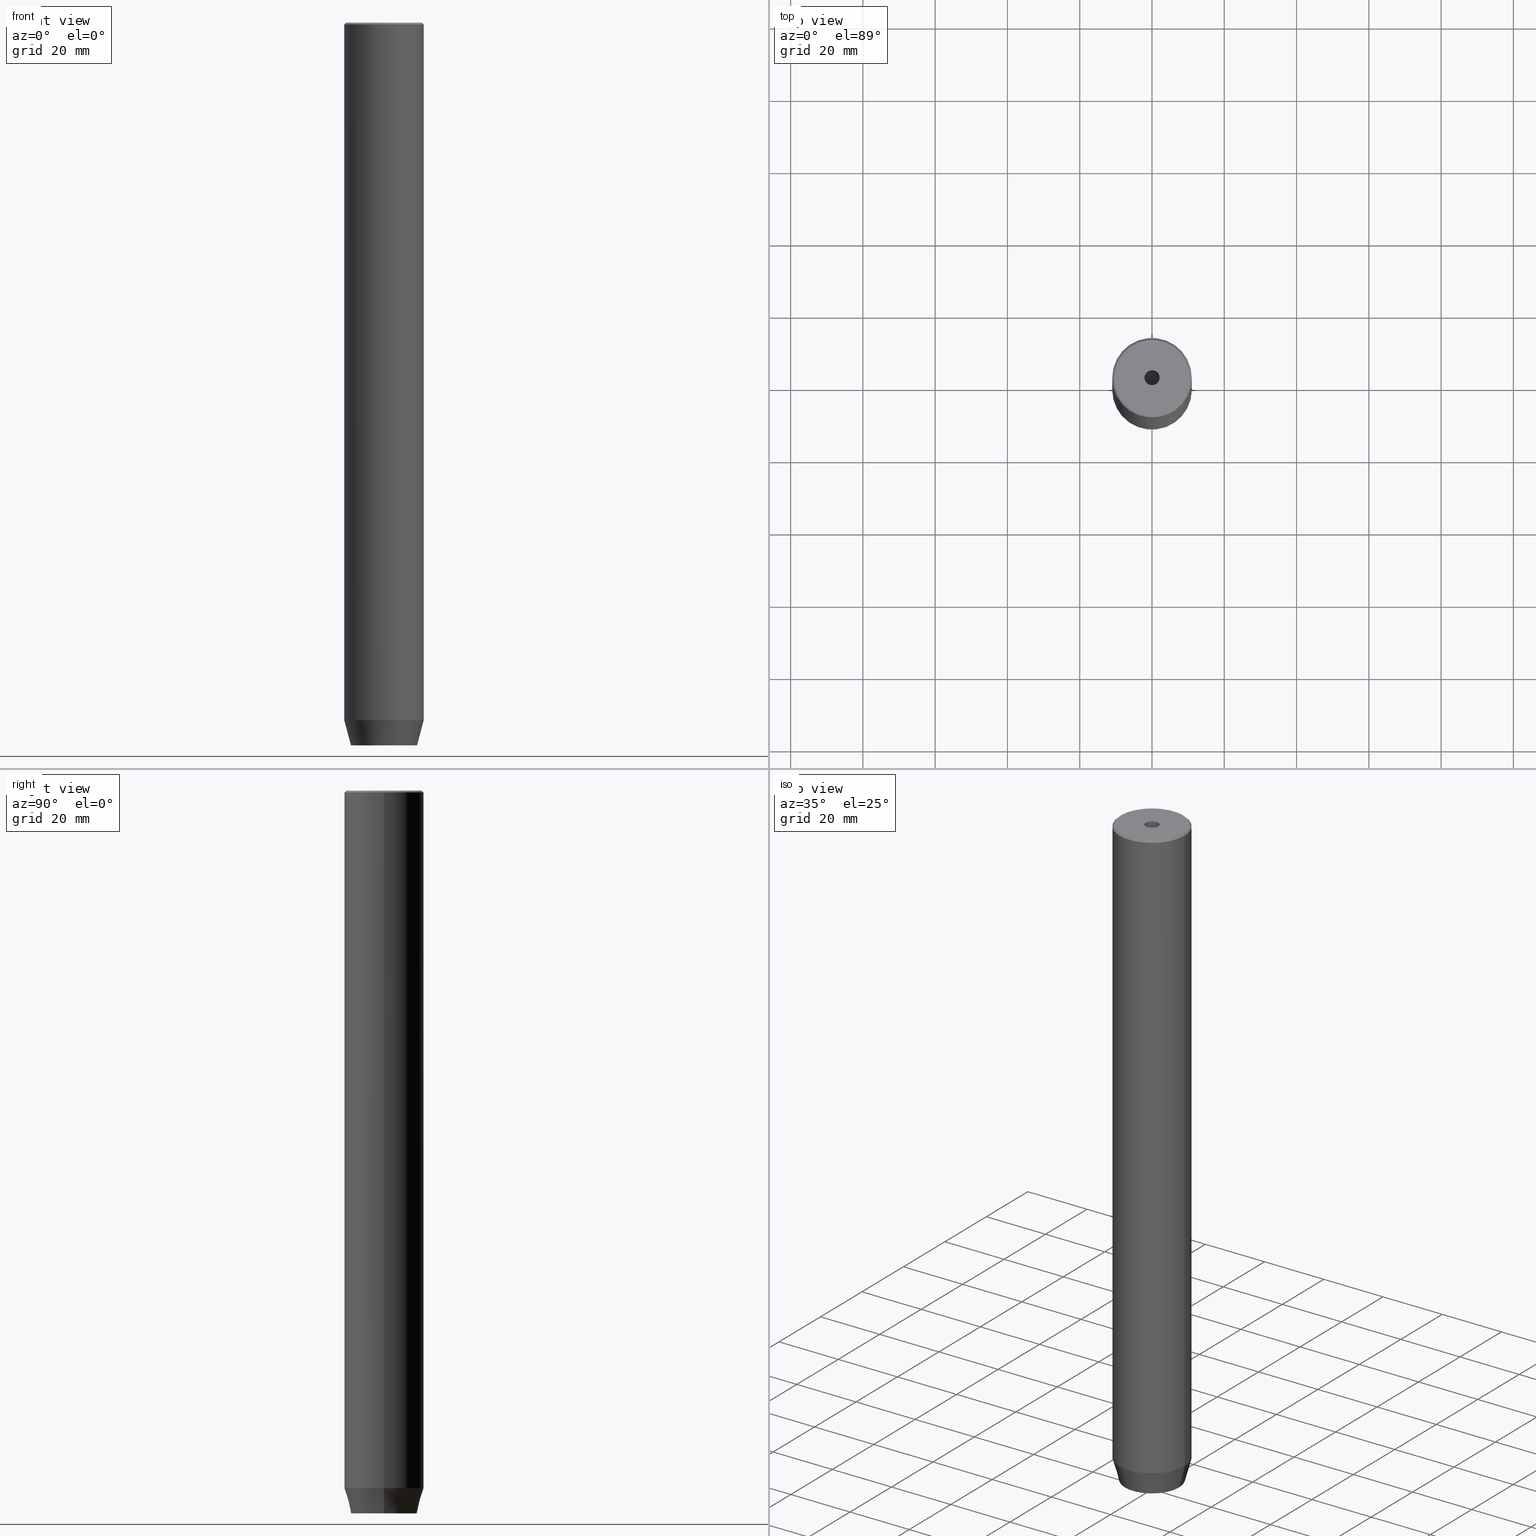
[diagram: canonical four-view strip — front | top / right | iso, engineering-drawing reading convention]
A machine part, canonical four-view strip (front | top / right | iso — engineering-drawing reading convention). The complete STEP part file that produces these views, byte-faithful:
ISO-10303-21;
HEADER;
FILE_DESCRIPTION (( 'STEP AP203' ),
    '1' );
FILE_NAME ('6869.STEP',
    '2024-01-02T17:17:59',
    ( '' ),
    ( '' ),
    'SwSTEP 2.0',
    'SolidWorks 2019',
    '' );
FILE_SCHEMA (( 'CONFIG_CONTROL_DESIGN' ));
ENDSEC;

DATA;
#1 = DIRECTION ( 'NONE',  ( 1.000000000000000000, 0.000000000000000000, 0.000000000000000000 ) ) ;
#2 = EDGE_CURVE ( 'NONE', #54, #73, #234, .T. ) ;
#3 = CARTESIAN_POINT ( 'NONE',  ( -4.000000000000000000, -2.309401076758503368, -200.0000000000000000 ) ) ;
#4 = DIRECTION ( 'NONE',  ( -0.000000000000000000, -0.000000000000000000, -1.000000000000000000 ) ) ;
#5 = VERTEX_POINT ( 'NONE', #103 ) ;
#6 = APPROVAL ( #333, 'NEUR�EN�' ) ;
#7 = DIRECTION ( 'NONE',  ( 0.8571673007021108903, 0.000000000000000000, 0.5150380749100565980 ) ) ;
#8 = VERTEX_POINT ( 'NONE', #510 ) ;
#9 = CARTESIAN_POINT ( 'NONE',  ( 0.000000000000000000, 0.000000000000000000, -25.00000000000000000 ) ) ;
#10 = ORIENTED_EDGE ( 'NONE', *, *, #485, .T. ) ;
#11 = EDGE_LOOP ( 'NONE', ( #532, #406, #426, #525 ) ) ;
#12 = MECHANICAL_CONTEXT ( 'NONE', #52, 'mechanical' ) ;
#13 = VECTOR ( 'NONE', #44, 1000.000000000000000 ) ;
#14 = VECTOR ( 'NONE', #287, 1000.000000000000000 ) ;
#15 = ORIENTED_EDGE ( 'NONE', *, *, #568, .T. ) ;
#16 = DIRECTION ( 'NONE',  ( 0.000000000000000000, 0.000000000000000000, 1.000000000000000000 ) ) ;
#17 = PERSON_AND_ORGANIZATION ( #207, #68 ) ;
#18 = CC_DESIGN_DATE_AND_TIME_ASSIGNMENT ( #241, #170, ( #366 ) ) ;
#19 = DIRECTION ( 'NONE',  ( 0.000000000000000000, -1.000000000000000000, 0.000000000000000000 ) ) ;
#20 = LINE ( 'NONE', #474, #14 ) ;
#21 = EDGE_LOOP ( 'NONE', ( #371, #124 ) ) ;
#22 = ADVANCED_FACE ( 'NONE', ( #286 ), #100, .F. ) ;
#23 = CARTESIAN_POINT ( 'NONE',  ( 2.000000000000000444, 3.464101615137754386, -200.0000000000000000 ) ) ;
#24 = AXIS2_PLACEMENT_3D ( 'NONE', #9, #455, #511 ) ;
#25 = EDGE_CURVE ( 'NONE', #82, #560, #97, .T. ) ;
#26 = CLOSED_SHELL ( 'NONE', ( #408, #524, #545, #113, #273, #284, #189, #242, #431, #518, #489, #232, #22, #74, #320, #280, #88, #558, #211 ) ) ;
#27 = LOCAL_TIME ( 18, 17, 59.00000000000000000, #128 ) ;
#28 = DATE_AND_TIME ( #395, #364 ) ;
#29 = VERTEX_POINT ( 'NONE', #424 ) ;
#30 = CARTESIAN_POINT ( 'NONE',  ( 0.000000000000000000, 0.000000000000000000, 0.000000000000000000 ) ) ;
#31 = CARTESIAN_POINT ( 'NONE',  ( 4.000000000000000000, 0.000000000000000000, -197.2000000000000171 ) ) ;
#32 = COORDINATED_UNIVERSAL_TIME_OFFSET ( 1, 0, .AHEAD. ) ;
#33 = EDGE_LOOP ( 'NONE', ( #120, #191 ) ) ;
#34 = CIRCLE ( 'NONE', #161, 11.00000000000000000 ) ;
#35 = LINE ( 'NONE', #49, #248 ) ;
#36 = LINE ( 'NONE', #486, #567 ) ;
#37 = EDGE_LOOP ( 'NONE', ( #318, #544, #581, #464 ) ) ;
#38 = LINE ( 'NONE', #167, #434 ) ;
#39 = CARTESIAN_POINT ( 'NONE',  ( 4.000000000000000000, -2.309401076758502480, -197.2000000000000171 ) ) ;
#40 = DIRECTION ( 'NONE',  ( -0.000000000000000000, -0.000000000000000000, 1.000000000000000000 ) ) ;
#41 = ORIENTED_EDGE ( 'NONE', *, *, #563, .T. ) ;
#42 = VERTEX_POINT ( 'NONE', #447 ) ;
#43 = EDGE_CURVE ( 'NONE', #484, #8, #38, .T. ) ;
#44 = DIRECTION ( 'NONE',  ( 0.000000000000000000, 1.000000000000000000, 0.000000000000000000 ) ) ;
#45 = DIRECTION ( 'NONE',  ( -0.000000000000000000, -0.000000000000000000, 1.000000000000000000 ) ) ;
#46 = CARTESIAN_POINT ( 'NONE',  ( 0.000000000000000000, 0.000000000000000000, -1.990051048614449116E-16 ) ) ;
#47 = ORIENTED_EDGE ( 'NONE', *, *, #482, .F. ) ;
#48 = AXIS2_PLACEMENT_3D ( 'NONE', #31, #223, #270 ) ;
#49 = CARTESIAN_POINT ( 'NONE',  ( 0.000000000000000000, 4.618802153517006737, -197.2000000000000171 ) ) ;
#50 = DIRECTION ( 'NONE',  ( 0.000000000000000000, 0.000000000000000000, -1.000000000000000000 ) ) ;
#51 = ORIENTED_EDGE ( 'NONE', *, *, #439, .F. ) ;
#52 = APPLICATION_CONTEXT ( 'configuration controlled 3d designs of mechanical parts and assemblies' ) ;
#53 = FACE_OUTER_BOUND ( 'NONE', #226, .T. ) ;
#54 = VERTEX_POINT ( 'NONE', #349 ) ;
#55 = EDGE_LOOP ( 'NONE', ( #277, #351, #230, #326 ) ) ;
#56 = LINE ( 'NONE', #276, #300 ) ;
#57 = DIRECTION ( 'NONE',  ( -0.000000000000000000, -0.000000000000000000, 1.000000000000000000 ) ) ;
#58 = CARTESIAN_POINT ( 'NONE',  ( 0.000000000000000000, 0.000000000000000000, -0.4999999999999726885 ) ) ;
#59 = EDGE_LOOP ( 'NONE', ( #319, #217, #502, #355, #374, #468 ) ) ;
#60 = PERSON_AND_ORGANIZATION ( #207, #68 ) ;
#61 = CIRCLE ( 'NONE', #387, 9.124355652982133691 ) ;
#62 = CARTESIAN_POINT ( 'NONE',  ( -2.000000000000000888, -3.464101615137754386, -200.0000000000000000 ) ) ;
#63 = FACE_OUTER_BOUND ( 'NONE', #403, .T. ) ;
#64 = EDGE_CURVE ( 'NONE', #82, #324, #219, .T. ) ;
#65 = FACE_OUTER_BOUND ( 'NONE', #496, .T. ) ;
#66 = EDGE_CURVE ( 'NONE', #536, #139, #365, .T. ) ;
#67 = CONICAL_SURFACE ( 'NONE', #252, 10.50000000000000888, 0.7853981633974657095 ) ;
#68 = ORGANIZATION ( 'NEUR�EN�', 'NEUR�EN�', '' ) ;
#69 = EDGE_CURVE ( 'NONE', #484, #543, #35, .T. ) ;
#70 = APPROVAL ( #123, 'NEUR�EN�' ) ;
#71 = AXIS2_PLACEMENT_3D ( 'NONE', #382, #561, #114 ) ;
#72 = VECTOR ( 'NONE', #495, 1000.000000000000114 ) ;
#73 = VERTEX_POINT ( 'NONE', #404 ) ;
#74 = ADVANCED_FACE ( 'NONE', ( #539 ), #353, .F. ) ;
#75 = FACE_BOUND ( 'NONE', #21, .T. ) ;
#76 = DIRECTION ( 'NONE',  ( 1.000000000000000000, 0.000000000000000000, 0.000000000000000000 ) ) ;
#77 = PERSON_AND_ORGANIZATION ( #207, #68 ) ;
#78 = ORIENTED_EDGE ( 'NONE', *, *, #171, .F. ) ;
#79 = DIRECTION ( 'NONE',  ( 1.000000000000000000, 0.000000000000000000, 0.000000000000000000 ) ) ;
#80 = DIRECTION ( 'NONE',  ( -0.000000000000000000, -0.000000000000000000, 1.000000000000000000 ) ) ;
#81 = LINE ( 'NONE', #131, #72 ) ;
#82 = VERTEX_POINT ( 'NONE', #183 ) ;
#83 = VECTOR ( 'NONE', #292, 1000.000000000000000 ) ;
#84 = PERSON_AND_ORGANIZATION_ROLE ( 'design_supplier' ) ;
#85 = FACE_OUTER_BOUND ( 'NONE', #313, .T. ) ;
#86 = DIRECTION ( 'NONE',  ( 1.000000000000000000, 0.000000000000000000, 0.000000000000000000 ) ) ;
#87 = ORIENTED_EDGE ( 'NONE', *, *, #122, .T. ) ;
#88 = ADVANCED_FACE ( 'NONE', ( #309 ), #177, .T. ) ;
#89 = CARTESIAN_POINT ( 'NONE',  ( -4.000000000000000000, 2.309401076758503368, -200.0000000000000000 ) ) ;
#90 = DIRECTION ( 'NONE',  ( -0.000000000000000000, -0.000000000000000000, 1.000000000000000000 ) ) ;
#91 = DIRECTION ( 'NONE',  ( 0.000000000000000000, 0.000000000000000000, -1.000000000000000000 ) ) ;
#92 = EDGE_LOOP ( 'NONE', ( #180, #174, #181, #257 ) ) ;
#93 = DIRECTION ( 'NONE',  ( 0.5000000000000003331, -0.8660254037844385966, 0.000000000000000000 ) ) ;
#94 = DIRECTION ( 'NONE',  ( -0.000000000000000000, -0.000000000000000000, -1.000000000000000000 ) ) ;
#95 = LINE ( 'NONE', #463, #164 ) ;
#96 = VERTEX_POINT ( 'NONE', #141 ) ;
#97 = CIRCLE ( 'NONE', #311, 10.50000000000000888 ) ;
#98 = APPROVAL_PERSON_ORGANIZATION ( #582, #136, #194 ) ;
#99 = LINE ( 'NONE', #281, #435 ) ;
#100 = PLANE ( 'NONE',  #118 ) ;
#101 =( LENGTH_UNIT ( ) NAMED_UNIT ( * ) SI_UNIT ( .MILLI., .METRE. ) );
#102 = FACE_OUTER_BOUND ( 'NONE', #467, .T. ) ;
#103 = CARTESIAN_POINT ( 'NONE',  ( -2.099999999999998757, 2.571758278209440478E-16, -1.990051048614449116E-16 ) ) ;
#104 = CARTESIAN_POINT ( 'NONE',  ( -11.00000000000000000, 1.347111479062088405E-15, 0.000000000000000000 ) ) ;
#105 = EDGE_LOOP ( 'NONE', ( #236, #156, #444, #307 ) ) ;
#106 = PERSON_AND_ORGANIZATION ( #207, #68 ) ;
#107 = CARTESIAN_POINT ( 'NONE',  ( 9.124355652982133691, 0.000000000000000000, -200.0000000000000000 ) ) ;
#108 = VECTOR ( 'NONE', #259, 1000.000000000000000 ) ;
#109 = CONICAL_SURFACE ( 'NONE', #209, 11.00000000000000000, 0.2617993877991500740 ) ;
#110 = AXIS2_PLACEMENT_3D ( 'NONE', #46, #417, #185 ) ;
#111 = CARTESIAN_POINT ( 'NONE',  ( -9.124355652982133691, 1.232261386766375507E-15, -200.0000000000000000 ) ) ;
#112 = ORIENTED_EDGE ( 'NONE', *, *, #515, .F. ) ;
#113 = ADVANCED_FACE ( 'NONE', ( #85 ), #480, .T. ) ;
#114 = DIRECTION ( 'NONE',  ( -1.000000000000000000, 0.000000000000000000, -0.000000000000000000 ) ) ;
#115 = CC_DESIGN_PERSON_AND_ORGANIZATION_ASSIGNMENT ( #60, #578, ( #366 ) ) ;
#116 = VECTOR ( 'NONE', #321, 1000.000000000000000 ) ;
#117 = VECTOR ( 'NONE', #256, 999.9999999999998863 ) ;
#118 = AXIS2_PLACEMENT_3D ( 'NONE', #188, #551, #282 ) ;
#119 = VECTOR ( 'NONE', #260, 1000.000000000000000 ) ;
#120 = ORIENTED_EDGE ( 'NONE', *, *, #25, .T. ) ;
#121 = CC_DESIGN_APPROVAL ( #70, ( #379 ) ) ;
#122 = EDGE_CURVE ( 'NONE', #8, #54, #399, .T. ) ;
#123 = APPROVAL_STATUS ( 'not_yet_approved' ) ;
#124 = ORIENTED_EDGE ( 'NONE', *, *, #384, .F. ) ;
#125 = CARTESIAN_POINT ( 'NONE',  ( 11.00000000000000000, 0.000000000000000000, -193.0000000000000000 ) ) ;
#126 = DIRECTION ( 'NONE',  ( 1.000000000000000000, 0.000000000000000000, 0.000000000000000000 ) ) ;
#127 = VERTEX_POINT ( 'NONE', #498 ) ;
#128 = COORDINATED_UNIVERSAL_TIME_OFFSET ( 1, 0, .AHEAD. ) ;
#129 = DIRECTION ( 'NONE',  ( 0.8660254037844384856, 0.5000000000000002220, 0.000000000000000000 ) ) ;
#130 = EDGE_CURVE ( 'NONE', #536, #484, #583, .T. ) ;
#131 = CARTESIAN_POINT ( 'NONE',  ( -2.000000000000000888, -3.464101615137754386, -197.2000000000000171 ) ) ;
#132 = ORIENTED_EDGE ( 'NONE', *, *, #384, .T. ) ;
#133 = AXIS2_PLACEMENT_3D ( 'NONE', #168, #401, #76 ) ;
#134 = DATE_TIME_ROLE ( 'classification_date' ) ;
#135 = DIRECTION ( 'NONE',  ( 0.000000000000000000, 0.000000000000000000, -1.000000000000000000 ) ) ;
#136 = APPROVAL ( #258, 'NEUR�EN�' ) ;
#137 = CARTESIAN_POINT ( 'NONE',  ( 0.000000000000000000, 0.000000000000000000, -193.0000000000000000 ) ) ;
#138 = CARTESIAN_POINT ( 'NONE',  ( 0.000000000000000000, 0.000000000000000000, -25.00000000000000000 ) ) ;
#139 = VERTEX_POINT ( 'NONE', #89 ) ;
#140 = ORIENTED_EDGE ( 'NONE', *, *, #451, .T. ) ;
#141 = CARTESIAN_POINT ( 'NONE',  ( 11.00000000000000000, 0.000000000000000000, -0.4999999999999726885 ) ) ;
#142 = CARTESIAN_POINT ( 'NONE',  ( 0.000000000000000000, 0.000000000000000000, -193.0000000000000000 ) ) ;
#143 = ORIENTED_EDGE ( 'NONE', *, *, #162, .T. ) ;
#144 = DIRECTION ( 'NONE',  ( -0.5000000000000000000, 0.8660254037844387076, 0.000000000000000000 ) ) ;
#145 = ORIENTED_EDGE ( 'NONE', *, *, #69, .T. ) ;
#146 = CONICAL_SURFACE ( 'NONE', #553, 2.099999999999995648, 1.029744258676651647 ) ;
#147 =( GEOMETRIC_REPRESENTATION_CONTEXT ( 3 ) GLOBAL_UNCERTAINTY_ASSIGNED_CONTEXT ( ( #208 ) ) GLOBAL_UNIT_ASSIGNED_CONTEXT ( ( #101, #445, #352 ) ) REPRESENTATION_CONTEXT ( 'NONE', 'WORKASPACE' ) );
#148 = DIRECTION ( 'NONE',  ( 1.000000000000000000, 0.000000000000000000, 0.000000000000000000 ) ) ;
#149 = EDGE_LOOP ( 'NONE', ( #478, #412, #263, #225 ) ) ;
#150 = CYLINDRICAL_SURFACE ( 'NONE', #508, 11.00000000000000000 ) ;
#151 = CALENDAR_DATE ( 2024, 2, 1 ) ;
#152 = CYLINDRICAL_SURFACE ( 'NONE', #262, 11.00000000000000000 ) ;
#153 = ORIENTED_EDGE ( 'NONE', *, *, #122, .F. ) ;
#154 = EDGE_CURVE ( 'NONE', #303, #139, #457, .T. ) ;
#155 = LINE ( 'NONE', #367, #119 ) ;
#156 = ORIENTED_EDGE ( 'NONE', *, *, #66, .F. ) ;
#157 = AXIS2_PLACEMENT_3D ( 'NONE', #410, #45, #302 ) ;
#158 = PRODUCT_DEFINITION_FORMATION_WITH_SPECIFIED_SOURCE ( 'LIBOVOLN�', '', #446, .NOT_KNOWN. ) ;
#159 = CYLINDRICAL_SURFACE ( 'NONE', #462, 2.099999999999996980 ) ;
#160 = FACE_OUTER_BOUND ( 'NONE', #363, .T. ) ;
#161 = AXIS2_PLACEMENT_3D ( 'NONE', #458, #405, #126 ) ;
#162 = EDGE_CURVE ( 'NONE', #268, #96, #227, .T. ) ;
#163 = CC_DESIGN_PERSON_AND_ORGANIZATION_ASSIGNMENT ( #17, #407, ( #446 ) ) ;
#164 = VECTOR ( 'NONE', #550, 1000.000000000000000 ) ;
#165 = ORIENTED_EDGE ( 'NONE', *, *, #507, .T. ) ;
#166 = APPROVAL_PERSON_ORGANIZATION ( #106, #6, #314 ) ;
#167 = CARTESIAN_POINT ( 'NONE',  ( 2.000000000000000444, 3.464101615137754386, -197.2000000000000171 ) ) ;
#168 = CARTESIAN_POINT ( 'NONE',  ( 0.000000000000000000, 0.000000000000000000, -25.00000000000000000 ) ) ;
#169 = ORIENTED_EDGE ( 'NONE', *, *, #43, .F. ) ;
#170 = DATE_TIME_ROLE ( 'creation_date' ) ;
#171 = EDGE_CURVE ( 'NONE', #272, #197, #437, .T. ) ;
#172 = DIRECTION ( 'NONE',  ( -0.000000000000000000, -0.000000000000000000, -1.000000000000000000 ) ) ;
#173 = DIRECTION ( 'NONE',  ( 1.000000000000000000, 0.000000000000000000, 0.000000000000000000 ) ) ;
#174 = ORIENTED_EDGE ( 'NONE', *, *, #25, .F. ) ;
#175 = PERSON_AND_ORGANIZATION_ROLE ( 'classification_officer' ) ;
#176 = EDGE_CURVE ( 'NONE', #197, #268, #503, .T. ) ;
#177 = PLANE ( 'NONE',  #327 ) ;
#178 = LINE ( 'NONE', #584, #526 ) ;
#179 = LINE ( 'NONE', #360, #329 ) ;
#180 = ORIENTED_EDGE ( 'NONE', *, *, #485, .F. ) ;
#181 = ORIENTED_EDGE ( 'NONE', *, *, #64, .T. ) ;
#182 = CIRCLE ( 'NONE', #133, 2.099999999999995648 ) ;
#183 = CARTESIAN_POINT ( 'NONE',  ( -10.50000000000000888, 0.000000000000000000, 0.000000000000000000 ) ) ;
#184 = LINE ( 'NONE', #350, #521 ) ;
#185 = DIRECTION ( 'NONE',  ( 1.000000000000000000, 0.000000000000000000, 0.000000000000000000 ) ) ;
#186 = ORIENTED_EDGE ( 'NONE', *, *, #64, .F. ) ;
#187 = DIRECTION ( 'NONE',  ( 0.7071067811865597852, 8.659560562355083235E-17, -0.7071067811865352493 ) ) ;
#188 = CARTESIAN_POINT ( 'NONE',  ( -2.000000000000000888, -3.464101615137754386, -197.2000000000000171 ) ) ;
#189 = ADVANCED_FACE ( 'NONE', ( #75, #255 ), #442, .T. ) ;
#190 = DIRECTION ( 'NONE',  ( -1.000000000000000000, 0.000000000000000000, 0.000000000000000000 ) ) ;
#191 = ORIENTED_EDGE ( 'NONE', *, *, #465, .T. ) ;
#192 = CARTESIAN_POINT ( 'NONE',  ( 0.000000000000000000, 0.000000000000000000, 0.000000000000000000 ) ) ;
#193 = ORIENTED_EDGE ( 'NONE', *, *, #465, .F. ) ;
#194 = APPROVAL_ROLE ( '' ) ;
#195 = CIRCLE ( 'NONE', #523, 2.099999999999998757 ) ;
#196 = FACE_OUTER_BOUND ( 'NONE', #11, .T. ) ;
#197 = VERTEX_POINT ( 'NONE', #107 ) ;
#198 = APPROVAL_DATE_TIME ( #304, #136 ) ;
#199 = EDGE_CURVE ( 'NONE', #288, #303, #332, .T. ) ;
#200 = DIRECTION ( 'NONE',  ( 1.000000000000000000, 0.000000000000000000, 0.000000000000000000 ) ) ;
#201 = ORIENTED_EDGE ( 'NONE', *, *, #2, .T. ) ;
#202 = DIRECTION ( 'NONE',  ( 1.000000000000000000, 0.000000000000000000, 0.000000000000000000 ) ) ;
#203 = EDGE_LOOP ( 'NONE', ( #586, #577, #527 ) ) ;
#204 = VECTOR ( 'NONE', #4, 1000.000000000000000 ) ;
#205 = MANIFOLD_SOLID_BREP ( 'Vrt�k z�vitn�ku pro M5 z�vit1', #26 ) ;
#206 = DIRECTION ( 'NONE',  ( -0.000000000000000000, -0.000000000000000000, 1.000000000000000000 ) ) ;
#207 = PERSON ( 'NEUR�EN�', 'NEUR�EN�', 'NEUR�EN�', ('NEUR�EN�'), ('NEUR�EN�'), ('NEUR�EN�') ) ;
#208 = UNCERTAINTY_MEASURE_WITH_UNIT (LENGTH_MEASURE( 1.000000000000000082E-05 ), #101, 'distance_accuracy_value', 'NONE');
#209 = AXIS2_PLACEMENT_3D ( 'NONE', #142, #415, #359 ) ;
#210 = EDGE_CURVE ( 'NONE', #127, #29, #20, .T. ) ;
#211 = ADVANCED_FACE ( 'NONE', ( #196 ), #159, .F. ) ;
#212 = ORIENTED_EDGE ( 'NONE', *, *, #2, .F. ) ;
#213 = PERSON_AND_ORGANIZATION ( #207, #68 ) ;
#214 = DIRECTION ( 'NONE',  ( 0.000000000000000000, -0.000000000000000000, 1.000000000000000000 ) ) ;
#215 = CARTESIAN_POINT ( 'NONE',  ( -6.432287649943602629E-15, 0.000000000000000000, -26.26180729995787999 ) ) ;
#216 = VECTOR ( 'NONE', #7, 1000.000000000000114 ) ;
#217 = ORIENTED_EDGE ( 'NONE', *, *, #154, .F. ) ;
#218 = CALENDAR_DATE ( 2024, 2, 1 ) ;
#219 = LINE ( 'NONE', #529, #538 ) ;
#220 = FACE_OUTER_BOUND ( 'NONE', #335, .T. ) ;
#221 = ORIENTED_EDGE ( 'NONE', *, *, #549, .T. ) ;
#222 = DIRECTION ( 'NONE',  ( -0.000000000000000000, -0.000000000000000000, 1.000000000000000000 ) ) ;
#223 = DIRECTION ( 'NONE',  ( 1.000000000000000000, 0.000000000000000000, -0.000000000000000000 ) ) ;
#224 = LINE ( 'NONE', #238, #204 ) ;
#225 = ORIENTED_EDGE ( 'NONE', *, *, #66, .T. ) ;
#226 = EDGE_LOOP ( 'NONE', ( #112, #501, #41 ) ) ;
#227 = LINE ( 'NONE', #575, #108 ) ;
#228 = DIRECTION ( 'NONE',  ( -0.8571673007021108903, 1.049727191138616847E-16, 0.5150380749100565980 ) ) ;
#229 = CARTESIAN_POINT ( 'NONE',  ( 0.000000000000000000, 0.000000000000000000, 0.000000000000000000 ) ) ;
#230 = ORIENTED_EDGE ( 'NONE', *, *, #441, .T. ) ;
#231 = AXIS2_PLACEMENT_3D ( 'NONE', #58, #240, #200 ) ;
#232 = ADVANCED_FACE ( 'NONE', ( #385 ), #246, .F. ) ;
#233 = PLANE ( 'NONE',  #573 ) ;
#234 = LINE ( 'NONE', #421, #386 ) ;
#235 = CARTESIAN_POINT ( 'NONE',  ( 2.168404344971008868E-16, 4.618802153517006737, -200.0000000000000000 ) ) ;
#236 = ORIENTED_EDGE ( 'NONE', *, *, #154, .T. ) ;
#237 = ORIENTED_EDGE ( 'NONE', *, *, #289, .T. ) ;
#238 = CARTESIAN_POINT ( 'NONE',  ( 4.336808689942017736E-16, -4.618802153517006737, -197.2000000000000171 ) ) ;
#239 = DIRECTION ( 'NONE',  ( 1.000000000000000000, 0.000000000000000000, 0.000000000000000000 ) ) ;
#240 = DIRECTION ( 'NONE',  ( 0.000000000000000000, 0.000000000000000000, -1.000000000000000000 ) ) ;
#241 = DATE_AND_TIME ( #218, #476 ) ;
#242 = ADVANCED_FACE ( 'NONE', ( #63 ), #152, .T. ) ;
#243 = AXIS2_PLACEMENT_3D ( 'NONE', #414, #80, #1 ) ;
#244 = PLANE ( 'NONE',  #71 ) ;
#245 = EDGE_LOOP ( 'NONE', ( #361, #571, #132, #301 ) ) ;
#246 = PLANE ( 'NONE',  #343 ) ;
#247 = DIRECTION ( 'NONE',  ( -0.000000000000000000, -0.000000000000000000, 1.000000000000000000 ) ) ;
#248 = VECTOR ( 'NONE', #172, 1000.000000000000000 ) ;
#249 = VECTOR ( 'NONE', #19, 1000.000000000000000 ) ;
#250 = LOCAL_TIME ( 18, 17, 59.00000000000000000, #497 ) ;
#251 = EDGE_CURVE ( 'NONE', #543, #254, #390, .T. ) ;
#252 = AXIS2_PLACEMENT_3D ( 'NONE', #229, #50, #368 ) ;
#253 = PRODUCT_RELATED_PRODUCT_CATEGORY ( 'detail', '', ( #446 ) ) ;
#254 = VERTEX_POINT ( 'NONE', #557 ) ;
#255 = FACE_OUTER_BOUND ( 'NONE', #33, .T. ) ;
#256 = DIRECTION ( 'NONE',  ( 0.8660254037844387076, 0.5000000000000001110, 0.000000000000000000 ) ) ;
#257 = ORIENTED_EDGE ( 'NONE', *, *, #295, .F. ) ;
#258 = APPROVAL_STATUS ( 'not_yet_approved' ) ;
#259 = DIRECTION ( 'NONE',  ( -0.000000000000000000, -0.000000000000000000, 1.000000000000000000 ) ) ;
#260 = DIRECTION ( 'NONE',  ( -0.000000000000000000, -0.000000000000000000, 1.000000000000000000 ) ) ;
#261 = VECTOR ( 'NONE', #315, 999.9999999999998863 ) ;
#262 = AXIS2_PLACEMENT_3D ( 'NONE', #334, #380, #562 ) ;
#263 = ORIENTED_EDGE ( 'NONE', *, *, #130, .F. ) ;
#264 = SECURITY_CLASSIFICATION_LEVEL ( 'unclassified' ) ;
#265 = CARTESIAN_POINT ( 'NONE',  ( 0.000000000000000000, 0.000000000000000000, -193.0000000000000000 ) ) ;
#266 = CARTESIAN_POINT ( 'NONE',  ( -2.000000000000000000, 3.464101615137754830, -200.0000000000000000 ) ) ;
#267 = DIRECTION ( 'NONE',  ( -0.8660254037844385966, -0.4999999999999999445, 0.000000000000000000 ) ) ;
#268 = VERTEX_POINT ( 'NONE', #564 ) ;
#269 = CARTESIAN_POINT ( 'NONE',  ( -4.000000000000000000, 0.000000000000000000, -200.0000000000000000 ) ) ;
#270 = DIRECTION ( 'NONE',  ( -0.000000000000000000, 0.000000000000000000, -1.000000000000000000 ) ) ;
#271 = DIRECTION ( 'NONE',  ( -0.2588190451025213501, 3.169619151431772337E-17, 0.9659258262890680902 ) ) ;
#272 = VERTEX_POINT ( 'NONE', #111 ) ;
#273 = ADVANCED_FACE ( 'NONE', ( #519 ), #150, .T. ) ;
#274 = DIRECTION ( 'NONE',  ( -1.000000000000000000, 0.000000000000000000, -0.000000000000000000 ) ) ;
#275 = DIRECTION ( 'NONE',  ( 1.000000000000000000, 0.000000000000000000, 0.000000000000000000 ) ) ;
#276 = CARTESIAN_POINT ( 'NONE',  ( -4.000000000000000000, -2.309401076758503368, -197.2000000000000171 ) ) ;
#277 = ORIENTED_EDGE ( 'NONE', *, *, #439, .T. ) ;
#278 = CONICAL_SURFACE ( 'NONE', #338, 10.50000000000000888, 0.7853981633974657095 ) ;
#279 = CC_DESIGN_SECURITY_CLASSIFICATION ( #379, ( #158 ) ) ;
#280 = ADVANCED_FACE ( 'NONE', ( #160 ), #425, .F. ) ;
#281 = CARTESIAN_POINT ( 'NONE',  ( 10.50000000000000888, 1.285879139104722014E-15, 0.000000000000000000 ) ) ;
#282 = DIRECTION ( 'NONE',  ( 0.8660254037844384856, -0.5000000000000002220, 0.000000000000000000 ) ) ;
#283 = CARTESIAN_POINT ( 'NONE',  ( 0.000000000000000000, 0.000000000000000000, -25.00000000000000000 ) ) ;
#284 = ADVANCED_FACE ( 'NONE', ( #522, #65 ), #244, .T. ) ;
#285 = ADVANCED_BREP_SHAPE_REPRESENTATION ( '6869', ( #205, #388 ), #147 ) ;
#286 = FACE_OUTER_BOUND ( 'NONE', #37, .T. ) ;
#287 = DIRECTION ( 'NONE',  ( -0.000000000000000000, -0.000000000000000000, 1.000000000000000000 ) ) ;
#288 = VERTEX_POINT ( 'NONE', #294 ) ;
#289 = EDGE_CURVE ( 'NONE', #254, #418, #290, .T. ) ;
#290 = LINE ( 'NONE', #430, #249 ) ;
#291 = CIRCLE ( 'NONE', #299, 11.00000000000000000 ) ;
#292 = DIRECTION ( 'NONE',  ( 0.8660254037844385966, -0.5000000000000001110, 0.000000000000000000 ) ) ;
#293 = EDGE_CURVE ( 'NONE', #381, #324, #479, .T. ) ;
#294 = CARTESIAN_POINT ( 'NONE',  ( 4.336808689942017736E-16, -4.618802153517006737, -200.0000000000000000 ) ) ;
#295 = EDGE_CURVE ( 'NONE', #96, #324, #540, .T. ) ;
#296 = AXIS2_PLACEMENT_3D ( 'NONE', #265, #222, #357 ) ;
#297 = AXIS2_PLACEMENT_3D ( 'NONE', #433, #471, #513 ) ;
#298 = EDGE_CURVE ( 'NONE', #487, #5, #155, .T. ) ;
#299 = AXIS2_PLACEMENT_3D ( 'NONE', #137, #535, #316 ) ;
#300 = VECTOR ( 'NONE', #420, 1000.000000000000000 ) ;
#301 = ORIENTED_EDGE ( 'NONE', *, *, #210, .F. ) ;
#302 = DIRECTION ( 'NONE',  ( 1.000000000000000000, 0.000000000000000000, 0.000000000000000000 ) ) ;
#303 = VERTEX_POINT ( 'NONE', #3 ) ;
#304 = DATE_AND_TIME ( #151, #429 ) ;
#305 = CARTESIAN_POINT ( 'NONE',  ( -4.000000000000000000, 2.309401076758503368, -197.2000000000000171 ) ) ;
#306 = CYLINDRICAL_SURFACE ( 'NONE', #157, 2.099999999999996980 ) ;
#307 = ORIENTED_EDGE ( 'NONE', *, *, #565, .T. ) ;
#308 = CALENDAR_DATE ( 2024, 2, 1 ) ;
#309 = FACE_OUTER_BOUND ( 'NONE', #552, .T. ) ;
#310 = CARTESIAN_POINT ( 'NONE',  ( 0.000000000000000000, 0.000000000000000000, -0.4999999999999726885 ) ) ;
#311 = AXIS2_PLACEMENT_3D ( 'NONE', #470, #57, #239 ) ;
#312 = CIRCLE ( 'NONE', #483, 11.00000000000000000 ) ;
#313 = EDGE_LOOP ( 'NONE', ( #165, #15, #51, #587 ) ) ;
#314 = APPROVAL_ROLE ( '' ) ;
#315 = DIRECTION ( 'NONE',  ( 0.8660254037844387076, 0.5000000000000001110, 0.000000000000000000 ) ) ;
#316 = DIRECTION ( 'NONE',  ( 1.000000000000000000, 0.000000000000000000, 0.000000000000000000 ) ) ;
#317 = CARTESIAN_POINT ( 'NONE',  ( 10.50000000000000888, 1.316495309083405209E-15, 0.000000000000000000 ) ) ;
#318 = ORIENTED_EDGE ( 'NONE', *, *, #199, .T. ) ;
#319 = ORIENTED_EDGE ( 'NONE', *, *, #391, .F. ) ;
#320 = ADVANCED_FACE ( 'NONE', ( #449 ), #547, .F. ) ;
#321 = DIRECTION ( 'NONE',  ( 0.000000000000000000, -1.000000000000000000, 0.000000000000000000 ) ) ;
#322 = CARTESIAN_POINT ( 'NONE',  ( -11.00000000000000000, 1.347111479062088405E-15, -0.4999999999999726885 ) ) ;
#323 = CARTESIAN_POINT ( 'NONE',  ( 2.099999999999995648, 0.000000000000000000, -25.00000000000000000 ) ) ;
#324 = VERTEX_POINT ( 'NONE', #322 ) ;
#325 = CARTESIAN_POINT ( 'NONE',  ( -4.000000000000000000, 2.309401076758503368, -197.2000000000000171 ) ) ;
#326 = ORIENTED_EDGE ( 'NONE', *, *, #162, .F. ) ;
#327 = AXIS2_PLACEMENT_3D ( 'NONE', #493, #135, #274 ) ;
#328 = APPLICATION_CONTEXT ( 'configuration controlled 3d designs of mechanical parts and assemblies' ) ;
#329 = VECTOR ( 'NONE', #271, 1000.000000000000000 ) ;
#330 = FACE_OUTER_BOUND ( 'NONE', #149, .T. ) ;
#331 = EDGE_LOOP ( 'NONE', ( #372, #47, #212, #376 ) ) ;
#332 = LINE ( 'NONE', #62, #481 ) ;
#333 = APPROVAL_STATUS ( 'not_yet_approved' ) ;
#334 = CARTESIAN_POINT ( 'NONE',  ( 0.000000000000000000, 0.000000000000000000, 0.000000000000000000 ) ) ;
#335 = EDGE_LOOP ( 'NONE', ( #472, #520, #450, #491 ) ) ;
#336 = DIRECTION ( 'NONE',  ( -0.8660254037844384856, 0.5000000000000002220, 0.000000000000000000 ) ) ;
#337 = CIRCLE ( 'NONE', #378, 10.50000000000000888 ) ;
#338 = AXIS2_PLACEMENT_3D ( 'NONE', #505, #91, #190 ) ;
#339 = EDGE_CURVE ( 'NONE', #396, #487, #178, .T. ) ;
#340 = CARTESIAN_POINT ( 'NONE',  ( 0.000000000000000000, 0.000000000000000000, 0.000000000000000000 ) ) ;
#341 = EDGE_CURVE ( 'NONE', #8, #254, #184, .T. ) ;
#342 = CC_DESIGN_PERSON_AND_ORGANIZATION_ASSIGNMENT ( #452, #175, ( #379 ) ) ;
#343 = AXIS2_PLACEMENT_3D ( 'NONE', #432, #375, #16 ) ;
#344 = EDGE_CURVE ( 'NONE', #418, #288, #36, .T. ) ;
#345 = PRODUCT_DEFINITION_SHAPE ( 'NONE', 'NONE',  #366 ) ;
#346 = CC_DESIGN_APPROVAL ( #136, ( #366 ) ) ;
#347 = EDGE_LOOP ( 'NONE', ( #237, #555, #153, #423 ) ) ;
#348 = APPLICATION_PROTOCOL_DEFINITION ( 'international standard', 'config_control_design', 1994, #328 ) ;
#349 = CARTESIAN_POINT ( 'NONE',  ( 4.000000000000000000, -2.309401076758502480, -197.2000000000000171 ) ) ;
#350 = CARTESIAN_POINT ( 'NONE',  ( 4.000000000000000000, 2.309401076758503368, -197.2000000000000171 ) ) ;
#351 = ORIENTED_EDGE ( 'NONE', *, *, #293, .T. ) ;
#352 =( NAMED_UNIT ( * ) SI_UNIT ( $, .STERADIAN. ) SOLID_ANGLE_UNIT ( ) );
#353 = PLANE ( 'NONE',  #572 ) ;
#354 = CARTESIAN_POINT ( 'NONE',  ( 4.000000000000000000, -2.309401076758502480, -200.0000000000000000 ) ) ;
#355 = ORIENTED_EDGE ( 'NONE', *, *, #344, .F. ) ;
#356 = DATE_AND_TIME ( #537, #250 ) ;
#357 = DIRECTION ( 'NONE',  ( 1.000000000000000000, 0.000000000000000000, 0.000000000000000000 ) ) ;
#358 = EDGE_CURVE ( 'NONE', #127, #487, #182, .T. ) ;
#359 = DIRECTION ( 'NONE',  ( 1.000000000000000000, 0.000000000000000000, 0.000000000000000000 ) ) ;
#360 = CARTESIAN_POINT ( 'NONE',  ( -11.00000000000000000, 1.347111479062088405E-15, -193.0000000000000000 ) ) ;
#361 = ORIENTED_EDGE ( 'NONE', *, *, #563, .F. ) ;
#362 = CONICAL_SURFACE ( 'NONE', #24, 2.099999999999995648, 1.029744258676651647 ) ;
#363 = EDGE_LOOP ( 'NONE', ( #506, #517, #169, #145 ) ) ;
#364 = LOCAL_TIME ( 18, 17, 59.00000000000000000, #32 ) ;
#365 = LINE ( 'NONE', #305, #398 ) ;
#366 = PRODUCT_DEFINITION ( 'NEZN�M�', '', #158, #566 ) ;
#367 = CARTESIAN_POINT ( 'NONE',  ( -2.099999999999996980, 2.571758278209438013E-16, 0.000000000000000000 ) ) ;
#368 = DIRECTION ( 'NONE',  ( -1.000000000000000000, 0.000000000000000000, 0.000000000000000000 ) ) ;
#369 = ORIENTED_EDGE ( 'NONE', *, *, #130, .T. ) ;
#370 = CARTESIAN_POINT ( 'NONE',  ( 0.000000000000000000, 4.618802153517006737, -197.2000000000000171 ) ) ;
#371 = ORIENTED_EDGE ( 'NONE', *, *, #569, .F. ) ;
#372 = ORIENTED_EDGE ( 'NONE', *, *, #344, .T. ) ;
#373 = FACE_OUTER_BOUND ( 'NONE', #92, .T. ) ;
#374 = ORIENTED_EDGE ( 'NONE', *, *, #289, .F. ) ;
#375 = DIRECTION ( 'NONE',  ( -1.000000000000000000, 0.000000000000000000, 0.000000000000000000 ) ) ;
#376 = ORIENTED_EDGE ( 'NONE', *, *, #475, .T. ) ;
#377 = COORDINATED_UNIVERSAL_TIME_OFFSET ( 1, 0, .AHEAD. ) ;
#378 = AXIS2_PLACEMENT_3D ( 'NONE', #499, #90, #86 ) ;
#379 = SECURITY_CLASSIFICATION ( '', '', #264 ) ;
#380 = DIRECTION ( 'NONE',  ( -0.000000000000000000, -0.000000000000000000, 1.000000000000000000 ) ) ;
#381 = VERTEX_POINT ( 'NONE', #541 ) ;
#382 = CARTESIAN_POINT ( 'NONE',  ( 0.000000000000000000, 9.124355652982133691, -200.0000000000000000 ) ) ;
#383 = ORIENTED_EDGE ( 'NONE', *, *, #441, .F. ) ;
#384 = EDGE_CURVE ( 'NONE', #5, #29, #195, .T. ) ;
#385 = FACE_OUTER_BOUND ( 'NONE', #105, .T. ) ;
#386 = VECTOR ( 'NONE', #512, 1000.000000000000114 ) ;
#387 = AXIS2_PLACEMENT_3D ( 'NONE', #466, #422, #500 ) ;
#388 = AXIS2_PLACEMENT_3D ( 'NONE', #528, #514, #79 ) ;
#389 = CC_DESIGN_PERSON_AND_ORGANIZATION_ASSIGNMENT ( #213, #397, ( #158 ) ) ;
#390 = LINE ( 'NONE', #23, #83 ) ;
#391 = EDGE_CURVE ( 'NONE', #139, #543, #530, .T. ) ;
#392 = CC_DESIGN_DATE_AND_TIME_ASSIGNMENT ( #356, #134, ( #379 ) ) ;
#393 = AXIS2_PLACEMENT_3D ( 'NONE', #30, #214, #477 ) ;
#394 = EDGE_CURVE ( 'NONE', #381, #268, #34, .T. ) ;
#395 = CALENDAR_DATE ( 2024, 2, 1 ) ;
#396 = VERTEX_POINT ( 'NONE', #215 ) ;
#397 = PERSON_AND_ORGANIZATION_ROLE ( 'creator' ) ;
#398 = VECTOR ( 'NONE', #453, 1000.000000000000000 ) ;
#399 = LINE ( 'NONE', #409, #116 ) ;
#400 = CIRCLE ( 'NONE', #556, 2.099999999999995648 ) ;
#401 = DIRECTION ( 'NONE',  ( -0.000000000000000000, -0.000000000000000000, 1.000000000000000000 ) ) ;
#402 = SHAPE_DEFINITION_REPRESENTATION ( #345, #285 ) ;
#403 = EDGE_LOOP ( 'NONE', ( #460, #413, #143, #440 ) ) ;
#404 = CARTESIAN_POINT ( 'NONE',  ( 4.336808689942017736E-16, -4.618802153517006737, -197.2000000000000171 ) ) ;
#405 = DIRECTION ( 'NONE',  ( -0.000000000000000000, -0.000000000000000000, 1.000000000000000000 ) ) ;
#406 = ORIENTED_EDGE ( 'NONE', *, *, #358, .F. ) ;
#407 = PERSON_AND_ORGANIZATION_ROLE ( 'design_owner' ) ;
#408 = ADVANCED_FACE ( 'NONE', ( #443 ), #306, .F. ) ;
#409 = CARTESIAN_POINT ( 'NONE',  ( 4.000000000000000000, 0.000000000000000000, -197.2000000000000171 ) ) ;
#410 = CARTESIAN_POINT ( 'NONE',  ( 0.000000000000000000, 0.000000000000000000, 0.000000000000000000 ) ) ;
#411 = DIRECTION ( 'NONE',  ( 1.000000000000000000, 0.000000000000000000, 0.000000000000000000 ) ) ;
#412 = ORIENTED_EDGE ( 'NONE', *, *, #69, .F. ) ;
#413 = ORIENTED_EDGE ( 'NONE', *, *, #394, .T. ) ;
#414 = CARTESIAN_POINT ( 'NONE',  ( 0.000000000000000000, 0.000000000000000000, -200.0000000000000000 ) ) ;
#415 = DIRECTION ( 'NONE',  ( -0.000000000000000000, -0.000000000000000000, 1.000000000000000000 ) ) ;
#416 = VECTOR ( 'NONE', #206, 1000.000000000000000 ) ;
#417 = DIRECTION ( 'NONE',  ( -0.000000000000000000, -0.000000000000000000, 1.000000000000000000 ) ) ;
#418 = VERTEX_POINT ( 'NONE', #354 ) ;
#419 = CC_DESIGN_APPROVAL ( #6, ( #158 ) ) ;
#420 = DIRECTION ( 'NONE',  ( -0.000000000000000000, -0.000000000000000000, -1.000000000000000000 ) ) ;
#421 = CARTESIAN_POINT ( 'NONE',  ( 2.000000000000000888, -3.464101615137754386, -197.2000000000000171 ) ) ;
#422 = DIRECTION ( 'NONE',  ( -0.000000000000000000, -0.000000000000000000, 1.000000000000000000 ) ) ;
#423 = ORIENTED_EDGE ( 'NONE', *, *, #341, .T. ) ;
#424 = CARTESIAN_POINT ( 'NONE',  ( 2.099999999999998757, 0.000000000000000000, -1.990051048614449116E-16 ) ) ;
#425 = PLANE ( 'NONE',  #297 ) ;
#426 = ORIENTED_EDGE ( 'NONE', *, *, #210, .T. ) ;
#427 = DATE_AND_TIME ( #308, #27 ) ;
#428 = VECTOR ( 'NONE', #461, 1000.000000000000000 ) ;
#429 = LOCAL_TIME ( 18, 17, 59.00000000000000000, #377 ) ;
#430 = CARTESIAN_POINT ( 'NONE',  ( 4.000000000000000000, 0.000000000000000000, -200.0000000000000000 ) ) ;
#431 = ADVANCED_FACE ( 'NONE', ( #220 ), #109, .T. ) ;
#432 = CARTESIAN_POINT ( 'NONE',  ( -4.000000000000000000, 0.000000000000000000, -197.2000000000000171 ) ) ;
#433 = CARTESIAN_POINT ( 'NONE',  ( 2.000000000000000444, 3.464101615137754386, -197.2000000000000171 ) ) ;
#434 = VECTOR ( 'NONE', #546, 1000.000000000000000 ) ;
#435 = VECTOR ( 'NONE', #187, 1000.000000000000000 ) ;
#436 = CIRCLE ( 'NONE', #110, 2.099999999999998757 ) ;
#437 = CIRCLE ( 'NONE', #243, 9.124355652982133691 ) ;
#438 = APPROVAL_PERSON_ORGANIZATION ( #77, #70, #531 ) ;
#439 = EDGE_CURVE ( 'NONE', #268, #381, #291, .T. ) ;
#440 = ORIENTED_EDGE ( 'NONE', *, *, #295, .T. ) ;
#441 = EDGE_CURVE ( 'NONE', #324, #96, #312, .T. ) ;
#442 = PLANE ( 'NONE',  #393 ) ;
#443 = FACE_OUTER_BOUND ( 'NONE', #245, .T. ) ;
#444 = ORIENTED_EDGE ( 'NONE', *, *, #549, .F. ) ;
#445 =( NAMED_UNIT ( * ) PLANE_ANGLE_UNIT ( ) SI_UNIT ( $, .RADIAN. ) );
#446 = PRODUCT ( '6869', '6869', '', ( #12 ) ) ;
#447 = CARTESIAN_POINT ( 'NONE',  ( -4.000000000000000000, -2.309401076758503368, -197.2000000000000171 ) ) ;
#448 = VECTOR ( 'NONE', #509, 1000.000000000000000 ) ;
#449 = FACE_OUTER_BOUND ( 'NONE', #347, .T. ) ;
#450 = ORIENTED_EDGE ( 'NONE', *, *, #176, .T. ) ;
#451 = EDGE_CURVE ( 'NONE', #73, #42, #81, .T. ) ;
#452 = PERSON_AND_ORGANIZATION ( #207, #68 ) ;
#453 = DIRECTION ( 'NONE',  ( -0.000000000000000000, -0.000000000000000000, -1.000000000000000000 ) ) ;
#454 = LINE ( 'NONE', #39, #448 ) ;
#455 = DIRECTION ( 'NONE',  ( -0.000000000000000000, -0.000000000000000000, 1.000000000000000000 ) ) ;
#456 = ORIENTED_EDGE ( 'NONE', *, *, #507, .F. ) ;
#457 = LINE ( 'NONE', #269, #13 ) ;
#458 = CARTESIAN_POINT ( 'NONE',  ( 0.000000000000000000, 0.000000000000000000, -193.0000000000000000 ) ) ;
#459 = CARTESIAN_POINT ( 'NONE',  ( -2.000000000000000000, 3.464101615137754830, -197.2000000000000171 ) ) ;
#460 = ORIENTED_EDGE ( 'NONE', *, *, #293, .F. ) ;
#461 = DIRECTION ( 'NONE',  ( 0.2588190451025213501, 0.000000000000000000, 0.9659258262890680902 ) ) ;
#462 = AXIS2_PLACEMENT_3D ( 'NONE', #192, #247, #202 ) ;
#463 = CARTESIAN_POINT ( 'NONE',  ( -4.000000000000000000, 0.000000000000000000, -197.2000000000000171 ) ) ;
#464 = ORIENTED_EDGE ( 'NONE', *, *, #482, .T. ) ;
#465 = EDGE_CURVE ( 'NONE', #560, #82, #337, .T. ) ;
#466 = CARTESIAN_POINT ( 'NONE',  ( 0.000000000000000000, 0.000000000000000000, -200.0000000000000000 ) ) ;
#467 = EDGE_LOOP ( 'NONE', ( #193, #10, #383, #186 ) ) ;
#468 = ORIENTED_EDGE ( 'NONE', *, *, #251, .F. ) ;
#469 = DIRECTION ( 'NONE',  ( -0.000000000000000000, -0.000000000000000000, 1.000000000000000000 ) ) ;
#470 = CARTESIAN_POINT ( 'NONE',  ( 0.000000000000000000, 0.000000000000000000, 0.000000000000000000 ) ) ;
#471 = DIRECTION ( 'NONE',  ( 0.5000000000000001110, 0.8660254037844385966, -0.000000000000000000 ) ) ;
#472 = ORIENTED_EDGE ( 'NONE', *, *, #568, .F. ) ;
#473 = COORDINATED_UNIVERSAL_TIME_OFFSET ( 1, 0, .AHEAD. ) ;
#474 = CARTESIAN_POINT ( 'NONE',  ( 2.099999999999996980, 0.000000000000000000, 0.000000000000000000 ) ) ;
#475 = EDGE_CURVE ( 'NONE', #54, #418, #454, .T. ) ;
#476 = LOCAL_TIME ( 18, 17, 59.00000000000000000, #473 ) ;
#477 = DIRECTION ( 'NONE',  ( 1.000000000000000000, 0.000000000000000000, 0.000000000000000000 ) ) ;
#478 = ORIENTED_EDGE ( 'NONE', *, *, #391, .T. ) ;
#479 = LINE ( 'NONE', #104, #416 ) ;
#480 = CONICAL_SURFACE ( 'NONE', #296, 11.00000000000000000, 0.2617993877991500740 ) ;
#481 = VECTOR ( 'NONE', #336, 1000.000000000000114 ) ;
#482 = EDGE_CURVE ( 'NONE', #73, #288, #224, .T. ) ;
#483 = AXIS2_PLACEMENT_3D ( 'NONE', #310, #504, #275 ) ;
#484 = VERTEX_POINT ( 'NONE', #370 ) ;
#485 = EDGE_CURVE ( 'NONE', #560, #96, #99, .T. ) ;
#486 = CARTESIAN_POINT ( 'NONE',  ( 2.000000000000000888, -3.464101615137754386, -200.0000000000000000 ) ) ;
#487 = VERTEX_POINT ( 'NONE', #542 ) ;
#488 = CARTESIAN_POINT ( 'NONE',  ( -2.000000000000000000, 3.464101615137754830, -197.2000000000000171 ) ) ;
#489 = ADVANCED_FACE ( 'NONE', ( #330 ), #233, .F. ) ;
#490 = CARTESIAN_POINT ( 'NONE',  ( 0.000000000000000000, 0.000000000000000000, -1.990051048614449116E-16 ) ) ;
#491 = ORIENTED_EDGE ( 'NONE', *, *, #394, .F. ) ;
#492 = APPROVAL_DATE_TIME ( #427, #6 ) ;
#493 = CARTESIAN_POINT ( 'NONE',  ( 0.000000000000000000, 0.000000000000000000, -197.2000000000000171 ) ) ;
#494 = CC_DESIGN_PERSON_AND_ORGANIZATION_ASSIGNMENT ( #574, #84, ( #158 ) ) ;
#495 = DIRECTION ( 'NONE',  ( -0.8660254037844384856, 0.5000000000000002220, 0.000000000000000000 ) ) ;
#496 = EDGE_LOOP ( 'NONE', ( #456, #78 ) ) ;
#497 = COORDINATED_UNIVERSAL_TIME_OFFSET ( 1, 0, .AHEAD. ) ;
#498 = CARTESIAN_POINT ( 'NONE',  ( 2.099999999999995648, 0.000000000000000000, -25.00000000000000000 ) ) ;
#499 = CARTESIAN_POINT ( 'NONE',  ( 0.000000000000000000, 0.000000000000000000, 0.000000000000000000 ) ) ;
#500 = DIRECTION ( 'NONE',  ( 1.000000000000000000, 0.000000000000000000, 0.000000000000000000 ) ) ;
#501 = ORIENTED_EDGE ( 'NONE', *, *, #339, .T. ) ;
#502 = ORIENTED_EDGE ( 'NONE', *, *, #199, .F. ) ;
#503 = LINE ( 'NONE', #125, #428 ) ;
#504 = DIRECTION ( 'NONE',  ( 0.000000000000000000, 0.000000000000000000, -1.000000000000000000 ) ) ;
#505 = CARTESIAN_POINT ( 'NONE',  ( 0.000000000000000000, 0.000000000000000000, 0.000000000000000000 ) ) ;
#506 = ORIENTED_EDGE ( 'NONE', *, *, #251, .T. ) ;
#507 = EDGE_CURVE ( 'NONE', #197, #272, #61, .T. ) ;
#508 = AXIS2_PLACEMENT_3D ( 'NONE', #340, #559, #516 ) ;
#509 = DIRECTION ( 'NONE',  ( -0.000000000000000000, -0.000000000000000000, -1.000000000000000000 ) ) ;
#510 = CARTESIAN_POINT ( 'NONE',  ( 4.000000000000000000, 2.309401076758503368, -197.2000000000000171 ) ) ;
#511 = DIRECTION ( 'NONE',  ( 1.000000000000000000, 0.000000000000000000, 0.000000000000000000 ) ) ;
#512 = DIRECTION ( 'NONE',  ( -0.8660254037844384856, -0.5000000000000002220, 0.000000000000000000 ) ) ;
#513 = DIRECTION ( 'NONE',  ( -0.8660254037844385966, 0.5000000000000001110, 0.000000000000000000 ) ) ;
#514 = DIRECTION ( 'NONE',  ( 0.000000000000000000, 0.000000000000000000, 1.000000000000000000 ) ) ;
#515 = EDGE_CURVE ( 'NONE', #396, #127, #585, .T. ) ;
#516 = DIRECTION ( 'NONE',  ( 1.000000000000000000, 0.000000000000000000, 0.000000000000000000 ) ) ;
#517 = ORIENTED_EDGE ( 'NONE', *, *, #341, .F. ) ;
#518 = ADVANCED_FACE ( 'NONE', ( #373 ), #67, .T. ) ;
#519 = FACE_OUTER_BOUND ( 'NONE', #55, .T. ) ;
#520 = ORIENTED_EDGE ( 'NONE', *, *, #171, .T. ) ;
#521 = VECTOR ( 'NONE', #94, 1000.000000000000000 ) ;
#522 = FACE_BOUND ( 'NONE', #59, .T. ) ;
#523 = AXIS2_PLACEMENT_3D ( 'NONE', #490, #576, #173 ) ;
#524 = ADVANCED_FACE ( 'NONE', ( #53 ), #362, .F. ) ;
#525 = ORIENTED_EDGE ( 'NONE', *, *, #569, .T. ) ;
#526 = VECTOR ( 'NONE', #228, 1000.000000000000114 ) ;
#527 = ORIENTED_EDGE ( 'NONE', *, *, #358, .T. ) ;
#528 = CARTESIAN_POINT ( 'NONE',  ( 0.000000000000000000, 0.000000000000000000, 0.000000000000000000 ) ) ;
#529 = CARTESIAN_POINT ( 'NONE',  ( -10.50000000000000888, 0.000000000000000000, 0.000000000000000000 ) ) ;
#530 = LINE ( 'NONE', #266, #117 ) ;
#531 = APPROVAL_ROLE ( '' ) ;
#532 = ORIENTED_EDGE ( 'NONE', *, *, #298, .F. ) ;
#533 = APPLICATION_PROTOCOL_DEFINITION ( 'international standard', 'config_control_design', 1994, #52 ) ;
#534 = CARTESIAN_POINT ( 'NONE',  ( 2.000000000000000888, -3.464101615137754386, -197.2000000000000171 ) ) ;
#535 = DIRECTION ( 'NONE',  ( -0.000000000000000000, -0.000000000000000000, 1.000000000000000000 ) ) ;
#536 = VERTEX_POINT ( 'NONE', #325 ) ;
#537 = CALENDAR_DATE ( 2024, 2, 1 ) ;
#538 = VECTOR ( 'NONE', #579, 1000.000000000000000 ) ;
#539 = FACE_OUTER_BOUND ( 'NONE', #331, .T. ) ;
#540 = CIRCLE ( 'NONE', #231, 11.00000000000000000 ) ;
#541 = CARTESIAN_POINT ( 'NONE',  ( -11.00000000000000000, 1.347111479062088405E-15, -193.0000000000000000 ) ) ;
#542 = CARTESIAN_POINT ( 'NONE',  ( -2.099999999999995648, 2.571758278209436040E-16, -25.00000000000000000 ) ) ;
#543 = VERTEX_POINT ( 'NONE', #235 ) ;
#544 = ORIENTED_EDGE ( 'NONE', *, *, #565, .F. ) ;
#545 = ADVANCED_FACE ( 'NONE', ( #102 ), #278, .T. ) ;
#546 = DIRECTION ( 'NONE',  ( 0.8660254037844385966, -0.5000000000000001110, 0.000000000000000000 ) ) ;
#547 = PLANE ( 'NONE',  #48 ) ;
#548 = ORIENTED_EDGE ( 'NONE', *, *, #43, .T. ) ;
#549 = EDGE_CURVE ( 'NONE', #42, #536, #95, .T. ) ;
#550 = DIRECTION ( 'NONE',  ( 0.000000000000000000, 1.000000000000000000, 0.000000000000000000 ) ) ;
#551 = DIRECTION ( 'NONE',  ( -0.5000000000000003331, -0.8660254037844385966, 0.000000000000000000 ) ) ;
#552 = EDGE_LOOP ( 'NONE', ( #369, #548, #87, #201, #140, #221 ) ) ;
#553 = AXIS2_PLACEMENT_3D ( 'NONE', #138, #40, #148 ) ;
#554 = FACE_OUTER_BOUND ( 'NONE', #203, .T. ) ;
#555 = ORIENTED_EDGE ( 'NONE', *, *, #475, .F. ) ;
#556 = AXIS2_PLACEMENT_3D ( 'NONE', #283, #469, #411 ) ;
#557 = CARTESIAN_POINT ( 'NONE',  ( 4.000000000000000000, 2.309401076758503368, -200.0000000000000000 ) ) ;
#558 = ADVANCED_FACE ( 'NONE', ( #554 ), #146, .F. ) ;
#559 = DIRECTION ( 'NONE',  ( -0.000000000000000000, -0.000000000000000000, 1.000000000000000000 ) ) ;
#560 = VERTEX_POINT ( 'NONE', #317 ) ;
#561 = DIRECTION ( 'NONE',  ( 0.000000000000000000, 0.000000000000000000, -1.000000000000000000 ) ) ;
#562 = DIRECTION ( 'NONE',  ( 1.000000000000000000, 0.000000000000000000, 0.000000000000000000 ) ) ;
#563 = EDGE_CURVE ( 'NONE', #487, #127, #400, .T. ) ;
#564 = CARTESIAN_POINT ( 'NONE',  ( 11.00000000000000000, 0.000000000000000000, -193.0000000000000000 ) ) ;
#565 = EDGE_CURVE ( 'NONE', #42, #303, #56, .T. ) ;
#566 = DESIGN_CONTEXT ( 'detailed design', #328, 'design' ) ;
#567 = VECTOR ( 'NONE', #580, 1000.000000000000114 ) ;
#568 = EDGE_CURVE ( 'NONE', #272, #381, #179, .T. ) ;
#569 = EDGE_CURVE ( 'NONE', #29, #5, #436, .T. ) ;
#570 = APPROVAL_DATE_TIME ( #28, #70 ) ;
#571 = ORIENTED_EDGE ( 'NONE', *, *, #298, .T. ) ;
#572 = AXIS2_PLACEMENT_3D ( 'NONE', #534, #93, #129 ) ;
#573 = AXIS2_PLACEMENT_3D ( 'NONE', #459, #144, #267 ) ;
#574 = PERSON_AND_ORGANIZATION ( #207, #68 ) ;
#575 = CARTESIAN_POINT ( 'NONE',  ( 11.00000000000000000, 0.000000000000000000, 0.000000000000000000 ) ) ;
#576 = DIRECTION ( 'NONE',  ( -0.000000000000000000, -0.000000000000000000, 1.000000000000000000 ) ) ;
#577 = ORIENTED_EDGE ( 'NONE', *, *, #515, .T. ) ;
#578 = PERSON_AND_ORGANIZATION_ROLE ( 'creator' ) ;
#579 = DIRECTION ( 'NONE',  ( -0.7071067811865597852, 0.000000000000000000, -0.7071067811865352493 ) ) ;
#580 = DIRECTION ( 'NONE',  ( -0.8660254037844384856, -0.5000000000000002220, 0.000000000000000000 ) ) ;
#581 = ORIENTED_EDGE ( 'NONE', *, *, #451, .F. ) ;
#582 = PERSON_AND_ORGANIZATION ( #207, #68 ) ;
#583 = LINE ( 'NONE', #488, #261 ) ;
#584 = CARTESIAN_POINT ( 'NONE',  ( -2.099999999999995648, 2.571758278209436040E-16, -25.00000000000000000 ) ) ;
#585 = LINE ( 'NONE', #323, #216 ) ;
#586 = ORIENTED_EDGE ( 'NONE', *, *, #339, .F. ) ;
#587 = ORIENTED_EDGE ( 'NONE', *, *, #176, .F. ) ;
ENDSEC;
END-ISO-10303-21;
